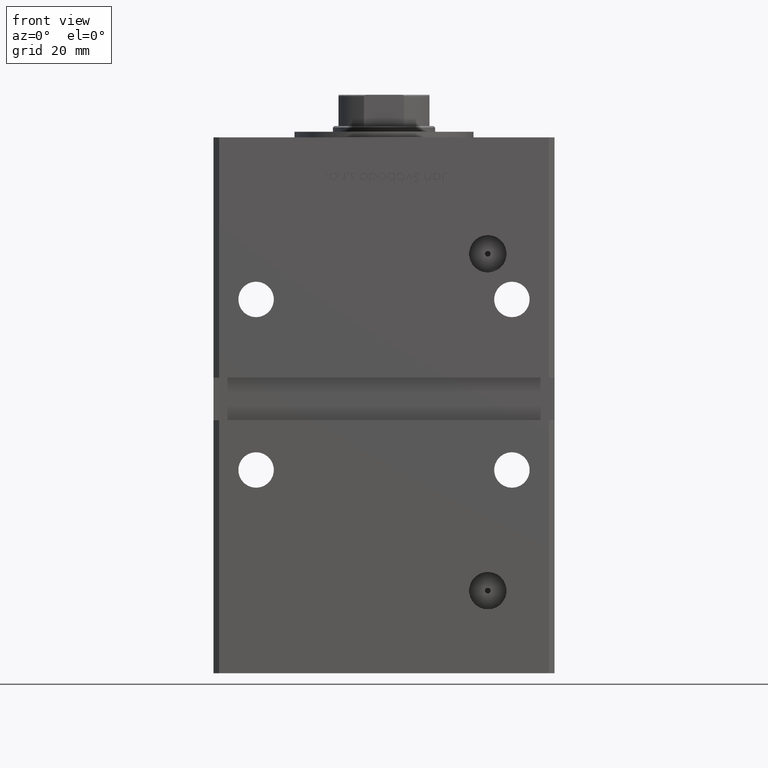
[diagram: clean part render]
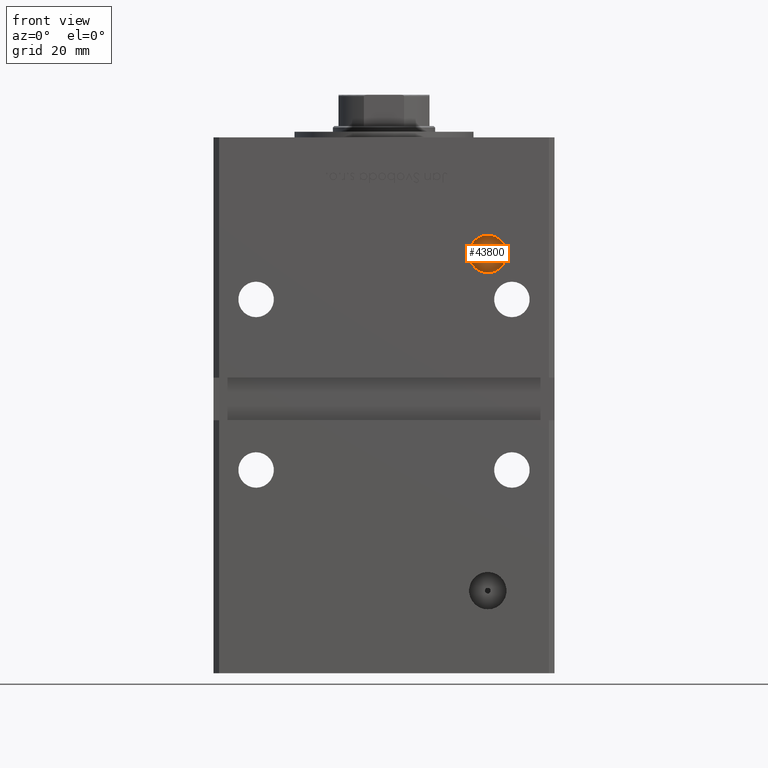
[diagram: same view with one face highlighted and labeled with its STEP entity id]
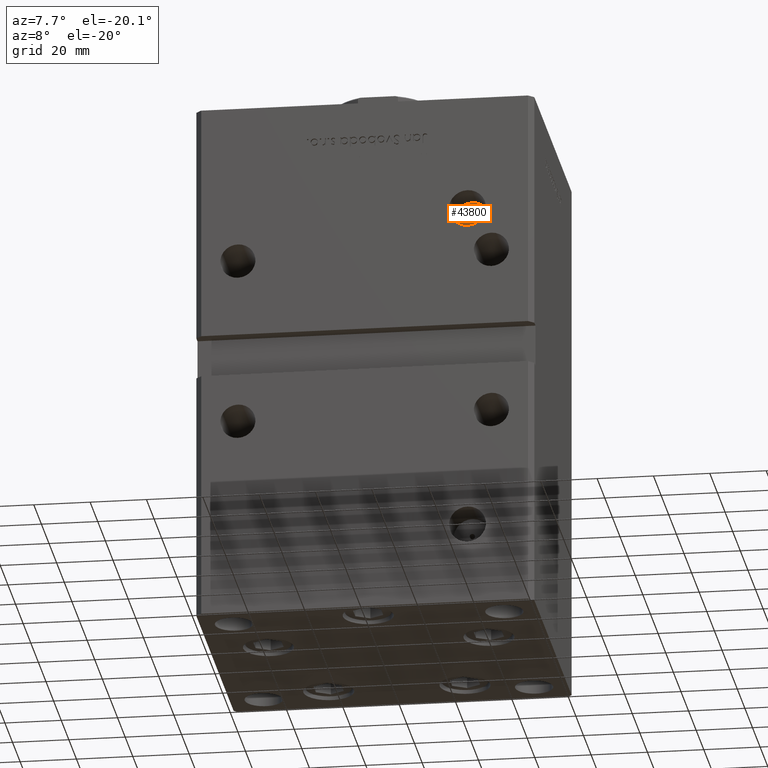
[diagram: same view with one face highlighted and labeled with its STEP entity id]
A machine part, front view. The second image highlights one B-rep face of the part: STEP entity #43800.
A second angle (auxiliary view) of the same face is appended — the face is thin or edge-on in the first view.
In plain terms, the highlighted planar face has unit normal (0, -1, 0).
Its self-contained STEP definition (entity closure, byte-faithful):
#5672 = CARTESIAN_POINT ( 'NONE',  ( 36.49999999999997868, -37.99999999999999289, 127.5000000000000000 ) ) ;
#7943 = CARTESIAN_POINT ( 'NONE',  ( 36.49999999999997868, -37.99999999999999289, 127.5000000000000000 ) ) ;
#8045 = CARTESIAN_POINT ( 'NONE',  ( 36.49999999999997868, -37.99999999999999289, 126.5000000000000000 ) ) ;
#8824 = EDGE_CURVE ( 'NONE', #42458, #33468, #50722, .T. ) ;
#10521 = VERTEX_POINT ( 'NONE', #20461 ) ;
#10788 = EDGE_LOOP ( 'NONE', ( #32346, #28405 ) ) ;
#14252 = DIRECTION ( 'NONE',  ( -0.000000000000000000, 1.000000000000000000, -0.000000000000000000 ) ) ;
#14546 = DIRECTION ( 'NONE',  ( 0.000000000000000000, -1.000000000000000000, 0.000000000000000000 ) ) ;
#14812 = CARTESIAN_POINT ( 'NONE',  ( 0.000000000000000000, -37.99999999999999289, 0.000000000000000000 ) ) ;
#20461 = CARTESIAN_POINT ( 'NONE',  ( 36.49999999999997868, -37.99999999999999289, 128.5000000000000000 ) ) ;
#20970 = CARTESIAN_POINT ( 'NONE',  ( 36.49999999999997868, -37.99999999999999289, 120.9200000000000159 ) ) ;
#21120 = CIRCLE ( 'NONE', #35671, 6.579999999999988525 ) ;
#22214 = EDGE_CURVE ( 'NONE', #33468, #42458, #21120, .T. ) ;
#23735 = DIRECTION ( 'NONE',  ( 0.000000000000000000, 0.000000000000000000, -1.000000000000000000 ) ) ;
#24855 = CARTESIAN_POINT ( 'NONE',  ( 36.49999999999997868, -37.99999999999999289, 134.0800000000000125 ) ) ;
#26367 = PLANE ( 'NONE',  #43014 ) ;
#26566 = AXIS2_PLACEMENT_3D ( 'NONE', #44116, #31509, #23735 ) ;
#26781 = AXIS2_PLACEMENT_3D ( 'NONE', #50985, #14252, #30605 ) ;
#27349 = EDGE_LOOP ( 'NONE', ( #43981, #38828 ) ) ;
#28126 = VERTEX_POINT ( 'NONE', #8045 ) ;
#28198 = CIRCLE ( 'NONE', #40995, 1.000000000000000888 ) ;
#28405 = ORIENTED_EDGE ( 'NONE', *, *, #33697, .F. ) ;
#30605 = DIRECTION ( 'NONE',  ( 0.000000000000000000, 0.000000000000000000, -1.000000000000000000 ) ) ;
#31344 = EDGE_CURVE ( 'NONE', #28126, #10521, #28198, .T. ) ;
#31509 = DIRECTION ( 'NONE',  ( 0.000000000000000000, -1.000000000000000000, 0.000000000000000000 ) ) ;
#32346 = ORIENTED_EDGE ( 'NONE', *, *, #31344, .F. ) ;
#32863 = DIRECTION ( 'NONE',  ( 0.000000000000000000, -1.000000000000000000, 0.000000000000000000 ) ) ;
#33468 = VERTEX_POINT ( 'NONE', #24855 ) ;
#33697 = EDGE_CURVE ( 'NONE', #10521, #28126, #42822, .T. ) ;
#34085 = DIRECTION ( 'NONE',  ( 0.000000000000000000, 0.000000000000000000, -1.000000000000000000 ) ) ;
#35671 = AXIS2_PLACEMENT_3D ( 'NONE', #5672, #41596, #34085 ) ;
#38828 = ORIENTED_EDGE ( 'NONE', *, *, #22214, .F. ) ;
#40995 = AXIS2_PLACEMENT_3D ( 'NONE', #7943, #32863, #41972 ) ;
#41596 = DIRECTION ( 'NONE',  ( -0.000000000000000000, 1.000000000000000000, -0.000000000000000000 ) ) ;
#41972 = DIRECTION ( 'NONE',  ( 0.000000000000000000, 0.000000000000000000, -1.000000000000000000 ) ) ;
#42458 = VERTEX_POINT ( 'NONE', #20970 ) ;
#42707 = DIRECTION ( 'NONE',  ( 0.000000000000000000, -0.000000000000000000, -1.000000000000000000 ) ) ;
#42822 = CIRCLE ( 'NONE', #26566, 1.000000000000000888 ) ;
#43014 = AXIS2_PLACEMENT_3D ( 'NONE', #14812, #14546, #42707 ) ;
#43800 = ADVANCED_FACE ( 'NONE', ( #46996, #51797 ), #26367, .T. ) ;
#43981 = ORIENTED_EDGE ( 'NONE', *, *, #8824, .F. ) ;
#44116 = CARTESIAN_POINT ( 'NONE',  ( 36.49999999999997868, -37.99999999999999289, 127.5000000000000000 ) ) ;
#46996 = FACE_BOUND ( 'NONE', #10788, .T. ) ;
#50722 = CIRCLE ( 'NONE', #26781, 6.579999999999988525 ) ;
#50985 = CARTESIAN_POINT ( 'NONE',  ( 36.49999999999997868, -37.99999999999999289, 127.5000000000000000 ) ) ;
#51797 = FACE_OUTER_BOUND ( 'NONE', #27349, .T. ) ;